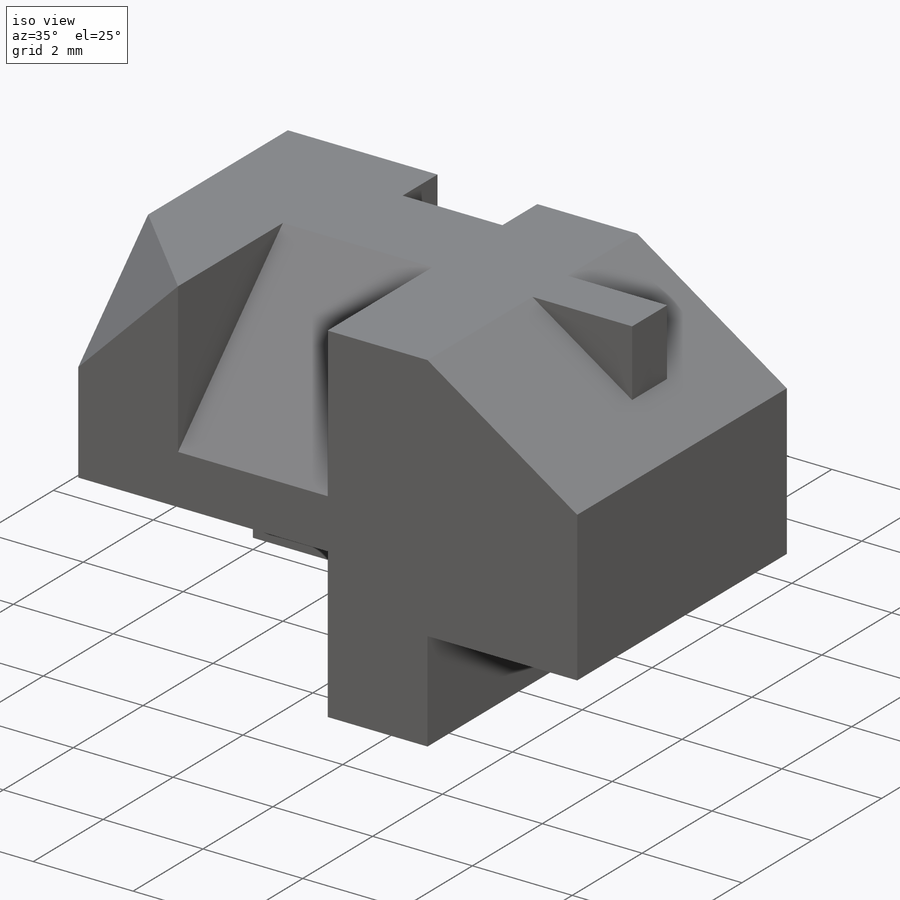
[diagram: iso view]
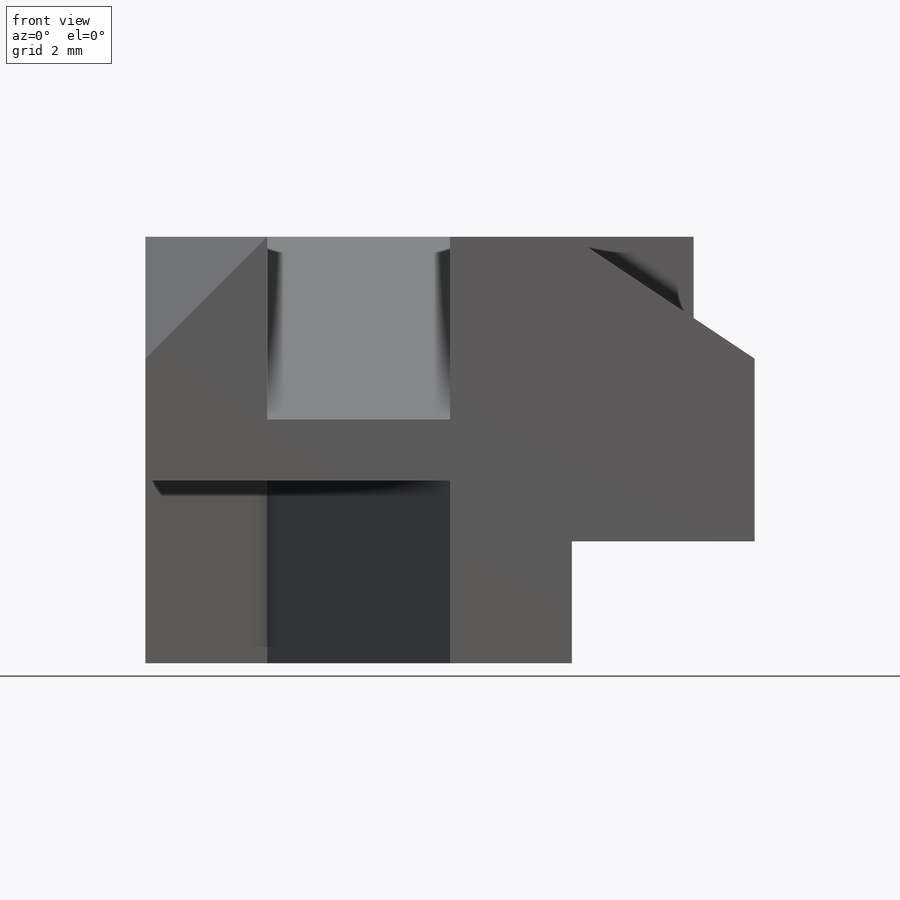
[diagram: front view]
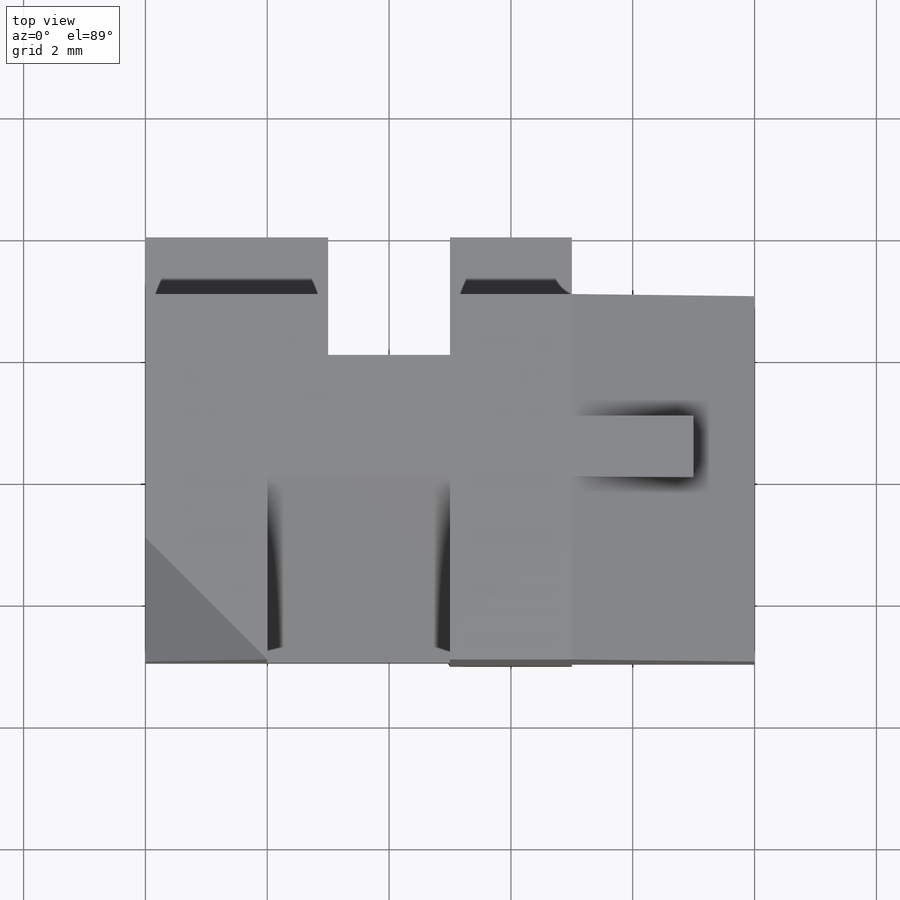
[diagram: top view]
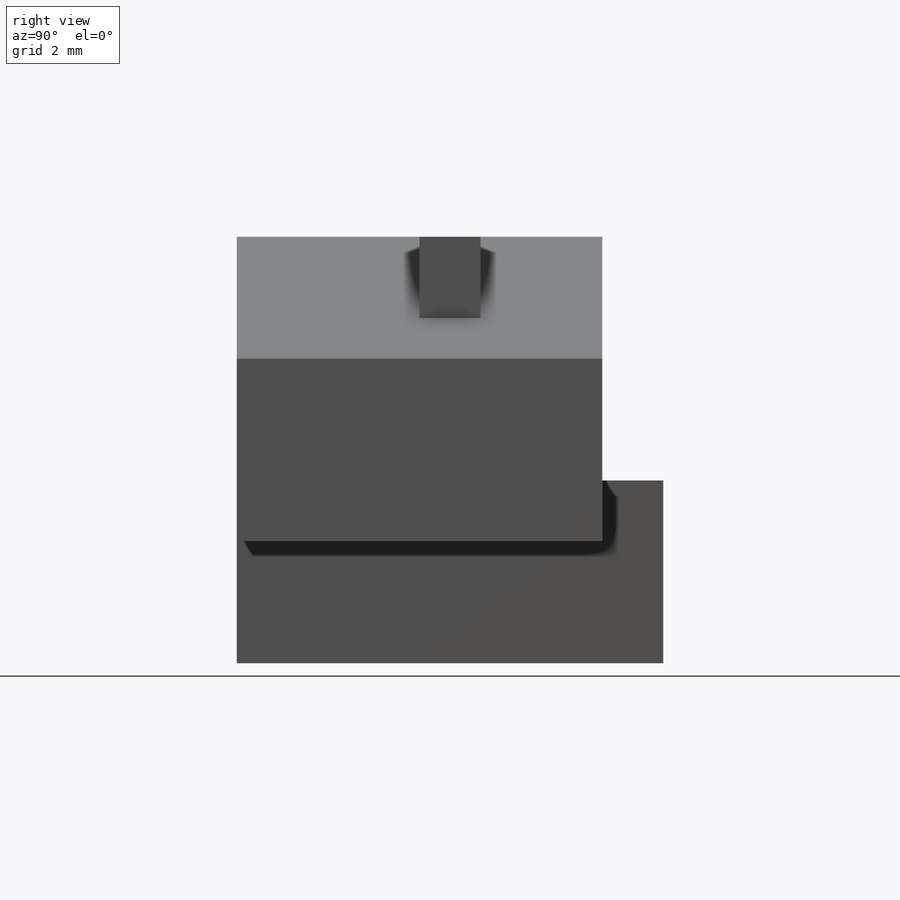
[diagram: right view]
SOLIDWORKS PART (.sldprt)
format: sldprt  version: not decoded by parser v0  size: 238,080 bytes
history: native  units: mm
features: sketch x6, extrude x4, cut_extrude x2, material x1 (+13 scaffold rows collapsed)
feature tree (26):
  scaffold x13  (default folders/planes/origin — collapsed)
  material  "Material <not specified>"
  sketch  "Sketch2"  dims[D1=2.0mm D2=5.0mm D3=3.0mm D4=2.0mm D5=2.0mm D6=2.0mm D7=2.0mm D8=2.0mm D9=2.0mm]
  extrude  "Boss-Extrude1"  Depth=3mm
  sketch  "Sketch3"  dims[D1=6.0mm D2=10.0mm D3=3.0mm]
  extrude  "Boss-Extrude2"  Depth=4mm
  sketch  "Sketch5"  dims[D1=3.0mm D2=3.0mm]
  cut_extrude  "Cut-Extrude4"  Depth=3mm
  sketch  "3DSketch1"  dims[D1=2.0mm D2=2.0mm]
  cut_extrude  "Cut-Extrude5"  Depth=3mm
  sketch  "Sketch6"  dims[D1=2.0mm D2=3.0mm D3=3.0mm]
  extrude  "Boss-Extrude3"  Depth=5mm
  sketch  "Sketch7"  dims[D1=2.0mm D2=1.0mm D3=2.0mm]
  extrude  "Boss-Extrude4"  Depth=5mm
decode coverage: 12 of 12 modeling features carry decoded parameters
note: suppression state not decoded; provenance and decode notes live in map.json
